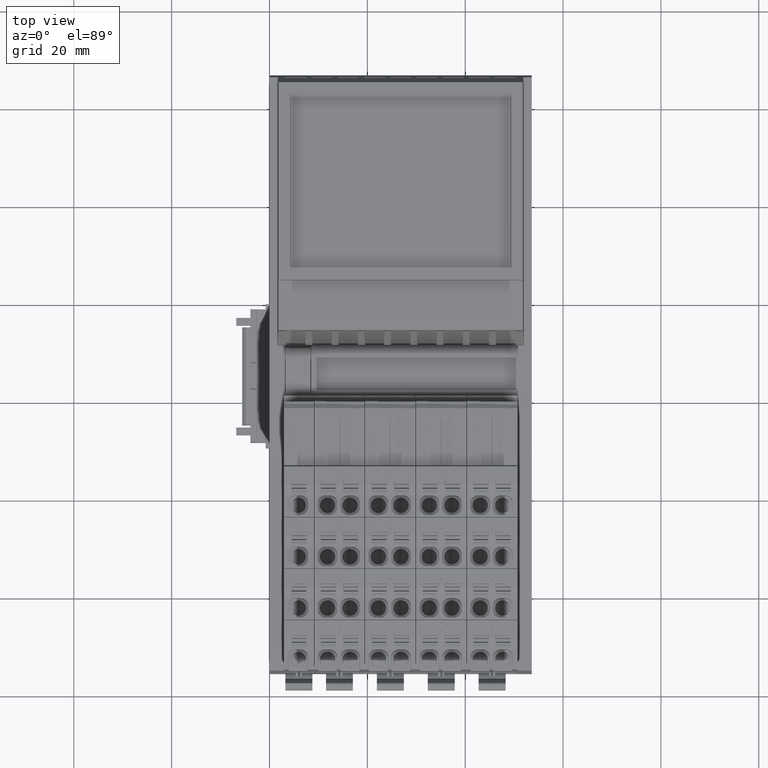
[diagram: clean part render]
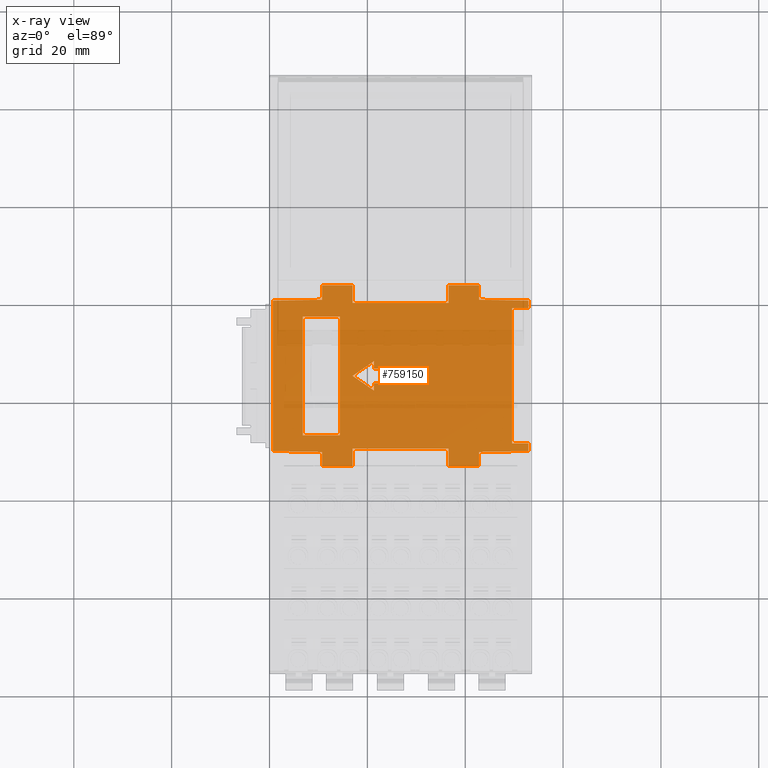
[diagram: x-ray — body ghosted, one internal face saturated and labeled with its STEP entity id]
A machine part, top view, then the same camera in x-ray: the body is ghosted and one INTERNAL B-rep face — a face not visible from any outside direction — is saturated and labeled: STEP entity #759150.
In plain terms, the highlighted planar face has unit normal (0, 0, -1).
Its self-contained STEP definition (entity closure, byte-faithful):
#659920=CARTESIAN_POINT('',(-15.5525499087241,2.99999999998455,
24.8500000010141));
#659930=VERTEX_POINT('',#659920);
#659960=CARTESIAN_POINT('',(-15.9376686943677,2.99999999998418,
2.79999999999967));
#659970=DIRECTION('',(0.0174630412089708,1.64087493594967E-14,
0.999847509469186));
#659980=VECTOR('',#659970,1.);
#659990=LINE('',#659960,#659980);
#660000=CARTESIAN_POINT('',(-15.3772024968847,2.99999999998471,
34.8895269609261));
#660010=VERTEX_POINT('',#660000);
#660020=EDGE_CURVE('',#659930,#660010,#659990,.T.);
#685060=CARTESIAN_POINT('',(1.50307890379044,3.00000000000082,
2.79999999999972));
#685070=DIRECTION('',(5.12567408284352E-11,-2.48094488399691E-16,1.));
#685080=VECTOR('',#685070,1.);
#685090=LINE('',#685060,#685080);
#685100=CARTESIAN_POINT('',(1.50307890403527,3.00000000000082,
7.57657447990371));
#685110=VERTEX_POINT('',#685100);
#685120=CARTESIAN_POINT('',(1.50307890404787,3.00000000000082,
7.82228866659571));
#685130=VERTEX_POINT('',#685120);
#685140=EDGE_CURVE('',#685110,#685130,#685090,.T.);
#685670=CARTESIAN_POINT('',(-12.1500000000179,2.99999999998779,
28.800123264971));
#685680=VERTEX_POINT('',#685670);
#685710=CARTESIAN_POINT('',(-12.1500000000179,2.9999999999878,
2.79999999999967));
#685720=DIRECTION('',(-1.22464679913189E-16,2.48094537303158E-16,-1.));
#685730=VECTOR('',#685720,1.);
#685740=LINE('',#685710,#685730);
#685750=CARTESIAN_POINT('',(-12.1500000000179,2.99999999998779,
21.2500000004907));
#685760=VERTEX_POINT('',#685750);
#685770=EDGE_CURVE('',#685680,#685760,#685740,.T.);
#686330=CARTESIAN_POINT('',(-17.5413454074475,2.99999999998265,
21.2500000004907));
#686340=DIRECTION('',(1.,9.54070156210768E-13,-1.22464679913549E-16));
#686350=VECTOR('',#686340,1.);
#686360=LINE('',#686330,#686350);
#686370=CARTESIAN_POINT('',(12.1500018849931,3.00000000001098,
21.2500000004907));
#686380=VERTEX_POINT('',#686370);
#686390=EDGE_CURVE('',#685760,#686380,#686360,.T.);
#686710=CARTESIAN_POINT('',(12.1500018852508,3.00000000001098,
2.79999999999967));
#686720=DIRECTION('',(-1.39682381849476E-11,-2.48094550629684E-16,1.));
#686730=VECTOR('',#686720,1.);
#686740=LINE('',#686710,#686730);
#686750=CARTESIAN_POINT('',(12.1500018848876,3.00000000001098,
28.8001232655858));
#686760=VERTEX_POINT('',#686750);
#686770=EDGE_CURVE('',#686380,#686760,#686740,.T.);
#704410=CARTESIAN_POINT('',(-17.5413454074475,2.99999999998265,
28.8001232648346));
#704420=DIRECTION('',(1.,9.54070156210762E-13,2.53006872261151E-11));
#704430=VECTOR('',#704420,1.);
#704440=LINE('',#704410,#704430);
#704450=EDGE_CURVE('',#685680,#686760,#704440,.T.);
#706360=CARTESIAN_POINT('',(-18.4999993603891,2.99999999998174,
2.79999999999972));
#706370=DIRECTION('',(-1.39655241635942E-11,-2.48094550628069E-16,1.));
#706380=VECTOR('',#706370,1.);
#706390=LINE('',#706360,#706380);
#706400=CARTESIAN_POINT('',(-18.49999936061,2.99999999998174,
18.6134579217745));
#706410=VERTEX_POINT('',#706400);
#706420=CARTESIAN_POINT('',(-18.4999993606971,2.99999999998173,
24.8500000012063));
#706430=VERTEX_POINT('',#706420);
#706440=EDGE_CURVE('',#706410,#706430,#706390,.T.);
#707310=CARTESIAN_POINT('',(-14.8996952278539,2.99999999998517,
18.6134579218248));
#707320=VERTEX_POINT('',#707310);
#707350=CARTESIAN_POINT('',(-17.5413454074475,2.99999999998265,
18.6134579217879));
#707360=DIRECTION('',(-1.,-9.54070156210766E-13,-1.39655241635942E-11));
#707370=VECTOR('',#707360,1.);
#707380=LINE('',#707350,#707370);
#707390=EDGE_CURVE('',#707320,#706410,#707380,.T.);
#707670=CARTESIAN_POINT('',(-17.5413454074475,2.99999999998265,
24.8500000011438));
#707680=DIRECTION('',(-1.,-9.54070156210775E-13,6.52222563283775E-11));
#707690=VECTOR('',#707680,1.);
#707700=LINE('',#707670,#707690);
#707710=EDGE_CURVE('',#659930,#706430,#707700,.T.);
#709120=CARTESIAN_POINT('',(-14.8996952278539,2.99999999998518,
-1.01345792007181));
#709130=VERTEX_POINT('',#709120);
#709160=CARTESIAN_POINT('',(-14.8996952278539,2.99999999998518,
2.79999999999972));
#709170=DIRECTION('',(2.22181972365825E-17,2.48094537303296E-16,-1.));
#709180=VECTOR('',#709170,1.);
#709190=LINE('',#709160,#709180);
#709200=EDGE_CURVE('',#707320,#709130,#709190,.T.);
#710000=CARTESIAN_POINT('',(-18.4999993602488,2.99999999998174,
-7.25000000061527));
#710010=VERTEX_POINT('',#710000);
#710040=CARTESIAN_POINT('',(-18.4999993603891,2.99999999998174,
2.79999999999972));
#710050=DIRECTION('',(-1.39655241635942E-11,-2.48094550628069E-16,1.));
#710060=VECTOR('',#710050,1.);
#710070=LINE('',#710040,#710060);
#710080=CARTESIAN_POINT('',(-18.4999993603359,2.99999999998174,
-1.01345791983699));
#710090=VERTEX_POINT('',#710080);
#710100=EDGE_CURVE('',#710010,#710090,#710070,.T.);
#711800=CARTESIAN_POINT('',(-17.5413454074475,2.99999999998266,
-1.01345791989952));
#711810=DIRECTION('',(-1.,-9.54070156210775E-13,6.52222563283775E-11));
#711820=VECTOR('',#711810,1.);
#711830=LINE('',#711800,#711820);
#711840=EDGE_CURVE('',#709130,#710090,#711830,.T.);
#712630=CARTESIAN_POINT('',(-15.552549908736,2.99999999998455,
-7.2500000005741));
#712640=VERTEX_POINT('',#712630);
#712670=CARTESIAN_POINT('',(-17.5413454074475,2.99999999998266,
-7.25000000060188));
#712680=DIRECTION('',(-1.,-9.54070156210764E-13,-1.39655241635942E-11));
#712690=VECTOR('',#712680,1.);
#712700=LINE('',#712670,#712690);
#712710=EDGE_CURVE('',#712640,#710010,#712700,.T.);
#713010=CARTESIAN_POINT('',(-15.3770195778805,2.99999999998472,
-17.3000000001173));
#713020=VERTEX_POINT('',#713010);
#713050=CARTESIAN_POINT('',(-15.7280802396095,2.99999999998438,
2.79999999999967));
#713060=DIRECTION('',(-0.0174630412089708,-1.69100844440611E-14,
0.999847509469186));
#713070=VECTOR('',#713060,1.);
#713080=LINE('',#713050,#713070);
#713090=EDGE_CURVE('',#713020,#712640,#713080,.T.);
#713860=CARTESIAN_POINT('',(15.5525499088917,3.00000000001422,
24.850000000217));
#713870=VERTEX_POINT('',#713860);
#713900=CARTESIAN_POINT('',(-17.5413454074475,2.99999999998265,
24.8499999997548));
#713910=DIRECTION('',(1.,9.54070156210764E-13,1.39655241635942E-11));
#713920=VECTOR('',#713910,1.);
#713930=LINE('',#713900,#713920);
#713940=CARTESIAN_POINT('',(18.5000000000598,3.00000000001704,
24.8500000002582));
#713950=VERTEX_POINT('',#713940);
#713960=EDGE_CURVE('',#713870,#713950,#713930,.T.);
#714640=CARTESIAN_POINT('',(18.5000000003677,3.00000000001704,
2.79999999999972));
#714650=DIRECTION('',(1.39655241635942E-11,2.48094550628069E-16,-1.));
#714660=VECTOR('',#714650,1.);
#714670=LINE('',#714640,#714660);
#714680=CARTESIAN_POINT('',(18.5000000001468,3.00000000001704,
18.6134579222912));
#714690=VERTEX_POINT('',#714680);
#714700=EDGE_CURVE('',#713950,#714690,#714670,.T.);
#714940=CARTESIAN_POINT('',(-17.5413454074475,2.99999999998265,
18.6134579217879));
#714950=DIRECTION('',(-1.,-9.54070156210766E-13,-1.39655241635942E-11));
#714960=VECTOR('',#714950,1.);
#714970=LINE('',#714940,#714960);
#714980=CARTESIAN_POINT('',(14.8996952280992,3.0000000000136,
18.6134579222409));
#714990=VERTEX_POINT('',#714980);
#715000=EDGE_CURVE('',#714690,#714990,#714970,.T.);
#715540=CARTESIAN_POINT('',(14.89969522832,3.00000000001361,
2.79999999999972));
#715550=DIRECTION('',(-1.39678671865603E-11,-2.48094550629046E-16,1.));
#715560=VECTOR('',#715550,1.);
#715570=LINE('',#715540,#715560);
#715580=CARTESIAN_POINT('',(14.8996952283733,3.00000000001361,
-1.01345792201539));
#715590=VERTEX_POINT('',#715580);
#715600=EDGE_CURVE('',#715590,#714990,#715570,.T.);
#721170=CARTESIAN_POINT('',(-13.8018901758284,2.99999999998623,
-17.3000000001398));
#721180=VERTEX_POINT('',#721170);
#721230=CARTESIAN_POINT('',(-17.5413454074475,2.99999999998266,
-17.3000000000863));
#721240=DIRECTION('',(-1.,-9.54070156210772E-13,1.42957902460328E-11));
#721250=VECTOR('',#721240,1.);
#721260=LINE('',#721230,#721250);
#721270=EDGE_CURVE('',#721180,#713020,#721260,.T.);
#725290=CARTESIAN_POINT('',(13.8011732772524,3.00000000001256,
-14.0000000002516));
#725300=VERTEX_POINT('',#725290);
#725330=CARTESIAN_POINT('',(-17.5413454074475,2.99999999998266,
-14.0000000001173));
#725340=DIRECTION('',(-1.,-9.54070156210769E-13,4.28367970946833E-12));
#725350=VECTOR('',#725340,1.);
#725360=LINE('',#725330,#725350);
#725370=CARTESIAN_POINT('',(-13.8018901758284,2.99999999998623,
-14.0000000001333));
#725380=VERTEX_POINT('',#725370);
#725390=EDGE_CURVE('',#725300,#725380,#725360,.T.);
#744110=CARTESIAN_POINT('',(-17.5413454074475,2.99999999998265,
34.889526960957));
#744120=DIRECTION('',(1.,9.5407015621077E-13,-1.43124426096209E-11));
#744130=VECTOR('',#744120,1.);
#744140=LINE('',#744110,#744130);
#744150=CARTESIAN_POINT('',(15.3772024969058,3.00000000001405,
34.8895269604859));
#744160=VERTEX_POINT('',#744150);
#744170=EDGE_CURVE('',#660010,#744160,#744140,.T.);
#747590=CARTESIAN_POINT('',(15.5494344815295,3.00000000001423,
-7.25000000013972));
#747600=VERTEX_POINT('',#747590);
#747630=CARTESIAN_POINT('',(15.724964812255,3.00000000001439,
2.79999999999967));
#747640=DIRECTION('',(0.0174630411950042,1.64104840829727E-14,
0.99984750946943));
#747650=VECTOR('',#747640,1.);
#747660=LINE('',#747630,#747650);
#747670=CARTESIAN_POINT('',(15.3739041508042,3.00000000001406,
-17.3000000002644));
#747680=VERTEX_POINT('',#747670);
#747690=EDGE_CURVE('',#747680,#747600,#747660,.T.);
#748440=CARTESIAN_POINT('',(-17.5413454074475,2.99999999998266,
-1.01345791989952));
#748450=DIRECTION('',(-1.,-9.54070156210775E-13,6.52222563283775E-11));
#748460=VECTOR('',#748450,1.);
#748470=LINE('',#748440,#748460);
#748480=CARTESIAN_POINT('',(18.5000000004209,3.00000000001704,
-1.01345792225021));
#748490=VERTEX_POINT('',#748480);
#748500=EDGE_CURVE('',#748490,#715590,#748470,.T.);
#749160=CARTESIAN_POINT('',(-17.5413454074475,2.99999999998266,
-17.3000000001234));
#749170=DIRECTION('',(-1.,-9.54070156210769E-13,4.28367970946833E-12));
#749180=VECTOR('',#749170,1.);
#749190=LINE('',#749160,#749180);
#749200=CARTESIAN_POINT('',(13.8011732772985,3.00000000001256,
-17.3000000002577));
#749210=VERTEX_POINT('',#749200);
#749220=EDGE_CURVE('',#747680,#749210,#749190,.T.);
#750680=CARTESIAN_POINT('',(13.8011732770178,3.00000000001256,
2.80256935017003));
#750690=DIRECTION('',(1.39655266517824E-11,2.95252389967941E-16,-1.));
#750700=VECTOR('',#750690,1.);
#750710=LINE('',#750680,#750700);
#750720=EDGE_CURVE('',#725300,#749210,#750710,.T.);
#750910=CARTESIAN_POINT('',(-13.8018901758284,2.99999999998649,
2.80257560645119));
#750920=DIRECTION('',(-1.2490009027033E-16,-1.43695704205325E-14,-1.));
#750930=VECTOR('',#750920,1.);
#750940=LINE('',#750910,#750930);
#750950=EDGE_CURVE('',#725380,#721180,#750940,.T.);
#752000=CARTESIAN_POINT('',(18.500000000508,3.00000000001704,
-7.25000000009852));
#752010=VERTEX_POINT('',#752000);
#752040=CARTESIAN_POINT('',(-17.5413454074475,2.99999999998266,
-7.25000000060185));
#752050=DIRECTION('',(-1.,-9.54070156210764E-13,-1.39655241635942E-11));
#752060=VECTOR('',#752050,1.);
#752070=LINE('',#752040,#752060);
#752080=EDGE_CURVE('',#752010,#747600,#752070,.T.);
#752960=CARTESIAN_POINT('',(18.5000000003677,3.00000000001704,
2.79999999999972));
#752970=DIRECTION('',(1.39655241635942E-11,2.48094550628069E-16,-1.));
#752980=VECTOR('',#752970,1.);
#752990=LINE('',#752960,#752980);
#753000=EDGE_CURVE('',#748490,#752010,#752990,.T.);
#753220=CARTESIAN_POINT('',(15.9376686948295,3.0000000000146,
2.79999999999967));
#753230=DIRECTION('',(-0.0174630412229362,-1.69100844440611E-14,
0.999847509468942));
#753240=VECTOR('',#753230,1.);
#753250=LINE('',#753220,#753240);
#753260=EDGE_CURVE('',#713870,#744160,#753250,.T.);
#753460=CARTESIAN_POINT('',(-17.5413454074475,2.99999999998265,
8.99820656103086));
#753470=DIRECTION('',(-1.,-9.54070156210782E-13,5.12567408284352E-11));
#753480=VECTOR('',#753470,1.);
#753490=LINE('',#753460,#753480);
#753500=CARTESIAN_POINT('',(1.50307890410814,3.00000000000082,
8.99820656005471));
#753510=VERTEX_POINT('',#753500);
#753520=CARTESIAN_POINT('',(-1.49692109589186,2.99999999999796,
8.99820656020848));
#753530=VERTEX_POINT('',#753520);
#753540=EDGE_CURVE('',#753510,#753530,#753490,.T.);
#753930=CARTESIAN_POINT('',(-1.49692109620956,2.99999999999796,
2.79999999999972));
#753940=DIRECTION('',(-5.12567408284352E-11,2.48094488399691E-16,-1.));
#753950=VECTOR('',#753940,1.);
#753960=LINE('',#753930,#753950);
#753970=CARTESIAN_POINT('',(-1.49692109562231,2.99999999999796,
14.2571009484235));
#753980=VERTEX_POINT('',#753970);
#753990=CARTESIAN_POINT('',(-1.49692109580182,2.99999999999796,
10.7547683793525));
#754000=VERTEX_POINT('',#753990);
#754010=EDGE_CURVE('',#753980,#754000,#753960,.T.);
#754400=CARTESIAN_POINT('',(1.50307890379044,3.00000000000082,
2.79999999999972));
#754410=DIRECTION('',(5.12567408284352E-11,-2.48094488399691E-16,1.));
#754420=VECTOR('',#754410,1.);
#754430=LINE('',#754400,#754420);
#754440=CARTESIAN_POINT('',(1.50307890413406,3.00000000000082,
9.5039353188157));
#754450=VERTEX_POINT('',#754440);
#754460=CARTESIAN_POINT('',(1.50307890417651,3.00000000000082,
10.3320835735297));
#754470=VERTEX_POINT('',#754460);
#754480=EDGE_CURVE('',#754450,#754470,#754430,.T.);
#754870=CARTESIAN_POINT('',(-17.5413454074475,2.99999999998265,
10.7547683801749));
#754880=DIRECTION('',(1.,9.54070156210782E-13,-5.12567408284352E-11));
#754890=VECTOR('',#754880,1.);
#754900=LINE('',#754870,#754890);
#754910=CARTESIAN_POINT('',(1.50307890419818,3.00000000000082,
10.7547683791987));
#754920=VERTEX_POINT('',#754910);
#754930=EDGE_CURVE('',#754000,#754920,#754900,.T.);
#755250=CARTESIAN_POINT('',(-17.5413454074475,2.99999999998265,
9.50393531979185));
#755260=DIRECTION('',(1.,9.54070156210782E-13,-5.12567408284352E-11));
#755270=VECTOR('',#755260,1.);
#755280=LINE('',#755250,#755270);
#755290=CARTESIAN_POINT('',(-1.49692109586594,2.99999999999796,
9.50393531896947));
#755300=VERTEX_POINT('',#755290);
#755310=EDGE_CURVE('',#755300,#754450,#755280,.T.);
#755630=CARTESIAN_POINT('',(-17.5413454074475,2.99999999998265,
8.48922717430986));
#755640=DIRECTION('',(1.,9.54070156210782E-13,-5.12567408284352E-11));
#755650=VECTOR('',#755640,1.);
#755660=LINE('',#755630,#755650);
#755670=CARTESIAN_POINT('',(-1.49692109591795,2.99999999999796,
8.48922717348748));
#755680=VERTEX_POINT('',#755670);
#755690=CARTESIAN_POINT('',(1.50307890408205,3.00000000000082,
8.48922717333371));
#755700=VERTEX_POINT('',#755690);
#755710=EDGE_CURVE('',#755680,#755700,#755660,.T.);
#756100=CARTESIAN_POINT('',(1.50307890379044,3.00000000000082,
2.79999999999972));
#756110=DIRECTION('',(5.12567408284352E-11,-2.48094488399691E-16,1.));
#756120=VECTOR('',#756110,1.);
#756130=LINE('',#756100,#756120);
#756140=CARTESIAN_POINT('',(1.50307890437769,3.00000000000082,
14.2571009482697));
#756150=VERTEX_POINT('',#756140);
#756160=EDGE_CURVE('',#754920,#756150,#756130,.T.);
#756480=CARTESIAN_POINT('',(-1.49692109620956,2.99999999999796,
2.79999999999972));
#756490=DIRECTION('',(-5.12567408284352E-11,2.48094488399691E-16,-1.));
#756500=VECTOR('',#756490,1.);
#756510=LINE('',#756480,#756500);
#756520=CARTESIAN_POINT('',(-1.49692109582349,2.99999999999796,
10.3320835736835));
#756530=VERTEX_POINT('',#756520);
#756540=EDGE_CURVE('',#756530,#755300,#756510,.T.);
#756860=CARTESIAN_POINT('',(-17.5413454074475,2.99999999998265,
7.82228866757186));
#756870=DIRECTION('',(-1.,-9.54070156210782E-13,5.12567408284352E-11));
#756880=VECTOR('',#756870,1.);
#756890=LINE('',#756860,#756880);
#756900=CARTESIAN_POINT('',(-1.49692109595213,2.99999999999796,
7.82228866674948));
#756910=VERTEX_POINT('',#756900);
#756920=EDGE_CURVE('',#685130,#756910,#756890,.T.);
#757480=CARTESIAN_POINT('',(-1.49692109620956,2.99999999999796,
2.79999999999972));
#757490=DIRECTION('',(-5.12567408284352E-11,2.48094488399691E-16,-1.));
#757500=VECTOR('',#757490,1.);
#757510=LINE('',#757480,#757500);
#757520=CARTESIAN_POINT('',(-1.49692109596473,2.99999999999796,
7.57657448005748));
#757530=VERTEX_POINT('',#757520);
#757540=EDGE_CURVE('',#756910,#757530,#757510,.T.);
#757860=CARTESIAN_POINT('',(-1.49692109620956,2.99999999999796,
2.79999999999972));
#757870=DIRECTION('',(-5.12567408284352E-11,2.48094488399691E-16,-1.));
#757880=VECTOR('',#757870,1.);
#757890=LINE('',#757860,#757880);
#757900=EDGE_CURVE('',#753530,#755680,#757890,.T.);
#758100=CARTESIAN_POINT('',(14.3377423483163,3.00000000001307,
15.499999997827));
#758110=DIRECTION('',(9.54070156210768E-13,-1.,-2.48094537303275E-16));
#758120=DIRECTION('',(-1.,-9.54070156210781E-13,5.12567408284352E-11));
#758130=AXIS2_PLACEMENT_3D('',#758100,#758110,#758120);
#758140=PLANE('',#758130);
#758150=ORIENTED_EDGE('',*,*,#685770,.T.);
#758160=ORIENTED_EDGE('',*,*,#704450,.F.);
#758170=ORIENTED_EDGE('',*,*,#686770,.T.);
#758180=ORIENTED_EDGE('',*,*,#686390,.T.);
#758190=EDGE_LOOP('',(#758180,#758170,#758160,#758150));
#758200=FACE_BOUND('',#758190,.T.);
#758210=CARTESIAN_POINT('',(-17.5413454074475,2.99999999998265,
7.57657448087986));
#758220=DIRECTION('',(1.,9.54070156210782E-13,-5.12567408284352E-11));
#758230=VECTOR('',#758220,1.);
#758240=LINE('',#758210,#758230);
#758250=EDGE_CURVE('',#757530,#685110,#758240,.T.);
#758260=ORIENTED_EDGE('',*,*,#758250,.T.);
#758270=ORIENTED_EDGE('',*,*,#757540,.T.);
#758280=ORIENTED_EDGE('',*,*,#756920,.T.);
#758290=ORIENTED_EDGE('',*,*,#685140,.T.);
#758300=EDGE_LOOP('',(#758290,#758280,#758270,#758260));
#758310=FACE_BOUND('',#758300,.T.);
#758320=ORIENTED_EDGE('',*,*,#754480,.T.);
#758330=ORIENTED_EDGE('',*,*,#755310,.T.);
#758340=ORIENTED_EDGE('',*,*,#756540,.T.);
#758350=CARTESIAN_POINT('',(-17.5413454074475,2.99999999998265,
10.3320835745059));
#758360=DIRECTION('',(-1.,-9.54070156210782E-13,5.12567408284352E-11));
#758370=VECTOR('',#758360,1.);
#758380=LINE('',#758350,#758370);
#758390=EDGE_CURVE('',#754470,#756530,#758380,.T.);
#758400=ORIENTED_EDGE('',*,*,#758390,.T.);
#758410=EDGE_LOOP('',(#758400,#758340,#758330,#758320));
#758420=FACE_BOUND('',#758410,.T.);
#758430=ORIENTED_EDGE('',*,*,#755710,.T.);
#758440=ORIENTED_EDGE('',*,*,#757900,.T.);
#758450=ORIENTED_EDGE('',*,*,#753540,.T.);
#758460=CARTESIAN_POINT('',(1.50307890379044,3.00000000000082,
2.79999999999972));
#758470=DIRECTION('',(5.12567408284352E-11,-2.48094488399691E-16,1.));
#758480=VECTOR('',#758470,1.);
#758490=LINE('',#758460,#758480);
#758500=EDGE_CURVE('',#755700,#753510,#758490,.T.);
#758510=ORIENTED_EDGE('',*,*,#758500,.T.);
#758520=EDGE_LOOP('',(#758510,#758450,#758440,#758430));
#758530=FACE_BOUND('',#758520,.T.);
#758540=ORIENTED_EDGE('',*,*,#756160,.T.);
#758550=ORIENTED_EDGE('',*,*,#754930,.T.);
#758560=ORIENTED_EDGE('',*,*,#754010,.T.);
#758570=CARTESIAN_POINT('',(-17.5413454074475,2.99999999998265,
14.2571009492459));
#758580=DIRECTION('',(1.,9.54070156210782E-13,-5.12567408284352E-11));
#758590=VECTOR('',#758580,1.);
#758600=LINE('',#758570,#758590);
#758610=CARTESIAN_POINT('',(-2.99692109562231,2.99999999999653,
14.2571009485004));
#758620=VERTEX_POINT('',#758610);
#758630=EDGE_CURVE('',#758620,#753980,#758600,.T.);
#758640=ORIENTED_EDGE('',*,*,#758630,.T.);
#758650=CARTESIAN_POINT('',(-10.8931076263506,2.999999999989,
2.79999999999972));
#758660=DIRECTION('',(-0.567476634196581,-5.41178213353533E-13,
-0.823389500565145));
#758670=VECTOR('',#758660,1.);
#758680=LINE('',#758650,#758670);
#758690=CARTESIAN_POINT('',(0.00307890460081239,2.99999999999939,
18.6099999984786));
#758700=VERTEX_POINT('',#758690);
#758710=EDGE_CURVE('',#758700,#758620,#758680,.T.);
#758720=ORIENTED_EDGE('',*,*,#758710,.T.);
#758730=CARTESIAN_POINT('',(10.8992654331617,3.00000000000979,
2.79999999999972));
#758740=DIRECTION('',(-0.567476634112173,-5.41539035836536E-13,
0.82338950062332));
#758750=VECTOR('',#758740,1.);
#758760=LINE('',#758730,#758750);
#758770=CARTESIAN_POINT('',(3.0030789043777,3.00000000000225,
14.2571009481928));
#758780=VERTEX_POINT('',#758770);
#758790=EDGE_CURVE('',#758780,#758700,#758760,.T.);
#758800=ORIENTED_EDGE('',*,*,#758790,.T.);
#758810=CARTESIAN_POINT('',(-17.5413454074475,2.99999999998265,
14.2571009492459));
#758820=DIRECTION('',(1.,9.54070156210782E-13,-5.12567408284352E-11));
#758830=VECTOR('',#758820,1.);
#758840=LINE('',#758810,#758830);
#758850=EDGE_CURVE('',#756150,#758780,#758840,.T.);
#758860=ORIENTED_EDGE('',*,*,#758850,.T.);
#758870=EDGE_LOOP('',(#758860,#758800,#758720,#758640,#758560,#758550,
#758540));
#758880=FACE_BOUND('',#758870,.T.);
#758890=ORIENTED_EDGE('',*,*,#748500,.F.);
#758900=ORIENTED_EDGE('',*,*,#715600,.F.);
#758910=ORIENTED_EDGE('',*,*,#715000,.T.);
#758920=ORIENTED_EDGE('',*,*,#714700,.T.);
#758930=ORIENTED_EDGE('',*,*,#713960,.T.);
#758940=ORIENTED_EDGE('',*,*,#753260,.F.);
#758950=ORIENTED_EDGE('',*,*,#744170,.T.);
#758960=ORIENTED_EDGE('',*,*,#660020,.T.);
#758970=ORIENTED_EDGE('',*,*,#707710,.F.);
#758980=ORIENTED_EDGE('',*,*,#706440,.T.);
#758990=ORIENTED_EDGE('',*,*,#707390,.T.);
#759000=ORIENTED_EDGE('',*,*,#709200,.F.);
#759010=ORIENTED_EDGE('',*,*,#711840,.F.);
#759020=ORIENTED_EDGE('',*,*,#710100,.T.);
#759030=ORIENTED_EDGE('',*,*,#712710,.T.);
#759040=ORIENTED_EDGE('',*,*,#713090,.T.);
#759050=ORIENTED_EDGE('',*,*,#721270,.T.);
#759060=ORIENTED_EDGE('',*,*,#750950,.T.);
#759070=ORIENTED_EDGE('',*,*,#725390,.T.);
#759080=ORIENTED_EDGE('',*,*,#750720,.F.);
#759090=ORIENTED_EDGE('',*,*,#749220,.T.);
#759100=ORIENTED_EDGE('',*,*,#747690,.F.);
#759110=ORIENTED_EDGE('',*,*,#752080,.T.);
#759120=ORIENTED_EDGE('',*,*,#753000,.T.);
#759130=EDGE_LOOP('',(#759120,#759110,#759100,#759090,#759080,#759070,
#759060,#759050,#759040,#759030,#759020,#759010,#759000,#758990,#758980,
#758970,#758960,#758950,#758940,#758930,#758920,#758910,#758900,#758890)
);
#759140=FACE_OUTER_BOUND('',#759130,.T.);
#759150=ADVANCED_FACE('',(#758200,#758310,#758420,#758530,#758880,
#759140),#758140,.F.);